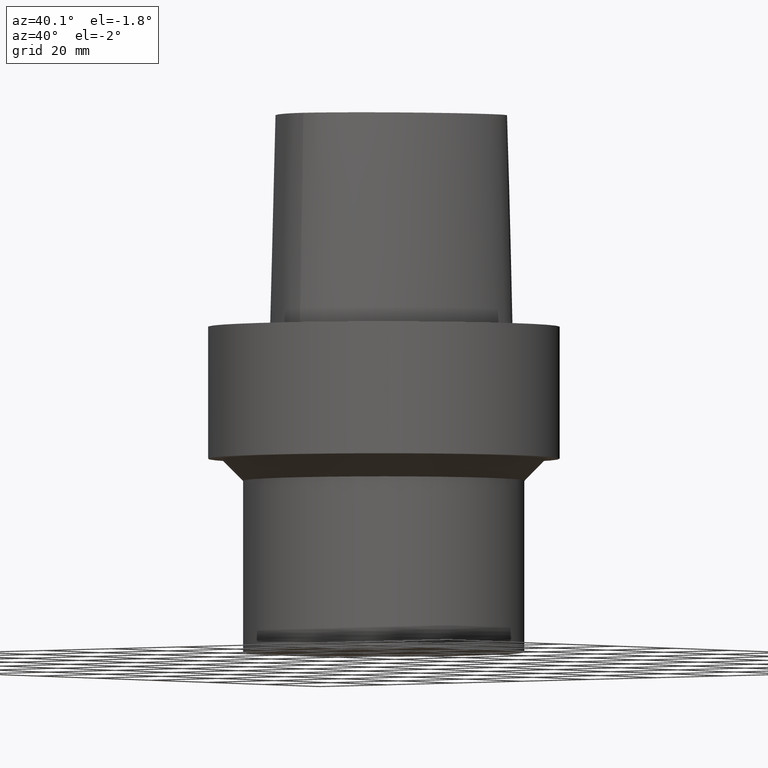
[diagram: clean part render]
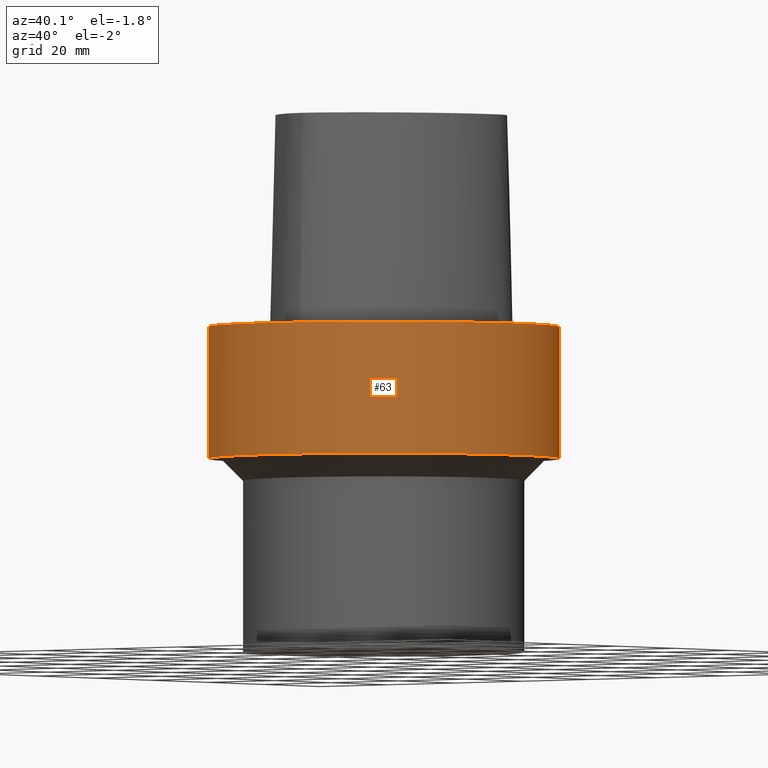
[diagram: same view with one face highlighted and labeled with its STEP entity id]
A machine part, auxiliary view. The second image highlights one B-rep face of the part: STEP entity #63.
In plain terms, the highlighted cylindrical surface (bore or boss wall) has radius 40 mm, axis along (0, 0, -1).
Its self-contained STEP definition (entity closure, byte-faithful):
#46=EDGE_CURVE('Unnamed[1]',#107,#107,#108,.T.);
#63=ADVANCED_FACE('Unnamed[1]',(#131,#132),#133,.T.);
#82=EDGE_CURVE('Unnamed[1]',#160,#160,#161,.T.);
#107=VERTEX_POINT('',#227);
#108=CIRCLE('',#228,40.0);
#131=FACE_BOUND('',#356,.T.);
#132=FACE_BOUND('',#357,.T.);
#133=CYLINDRICAL_SURFACE('',#358,40.0);
#160=VERTEX_POINT('',#774);
#161=CIRCLE('',#775,40.0);
#227=CARTESIAN_POINT('',(4.30125394739466E-029,40.0,-7.05601412803411E-013));
#228=AXIS2_PLACEMENT_3D('',#782,#783,#784);
#356=EDGE_LOOP('',(#803));
#357=EDGE_LOOP('',(#804));
#358=AXIS2_PLACEMENT_3D('',#805,#806,#807);
#774=CARTESIAN_POINT('',(1.83697019872107E-015,40.0,-30.0000000000007));
#775=AXIS2_PLACEMENT_3D('',#835,#836,#837);
#782=CARTESIAN_POINT('',(4.35081943503005E-029,8.7016388700601E-029,-7.105427357601E-013));
#783=DIRECTION('',(6.12323399573677E-017,1.22464679914735E-016,-1.0));
#784=DIRECTION('',(-1.23259516440783E-032,1.0,1.22464679914735E-016));
#803=ORIENTED_EDGE('',*,*,#82,.F.);
#804=ORIENTED_EDGE('',*,*,#46,.T.);
#805=CARTESIAN_POINT('',(9.18485099360558E-016,1.83697019872112E-015,-15.0000000000007));
#806=DIRECTION('',(6.12323399573677E-017,1.22464679914735E-016,-1.0));
#807=DIRECTION('',(-1.23259516440783E-032,1.0,1.22464679914735E-016));
#835=CARTESIAN_POINT('',(1.83697019872107E-015,3.67394039744215E-015,-30.0000000000007));
#836=DIRECTION('',(6.12323399573677E-017,1.22464679914735E-016,-1.0));
#837=DIRECTION('',(-1.23259516440783E-032,1.0,1.22464679914735E-016));